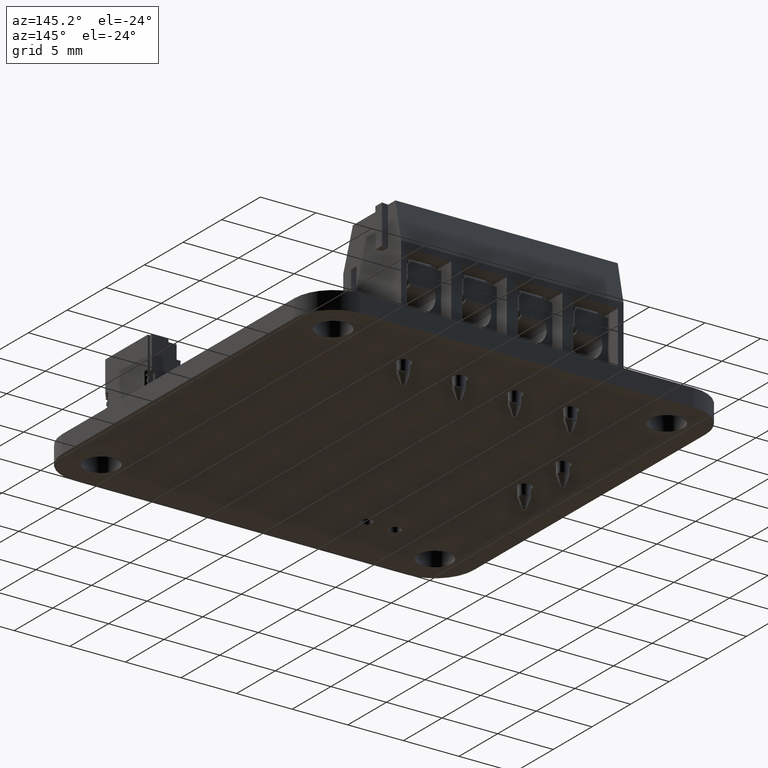
[diagram: clean part render]
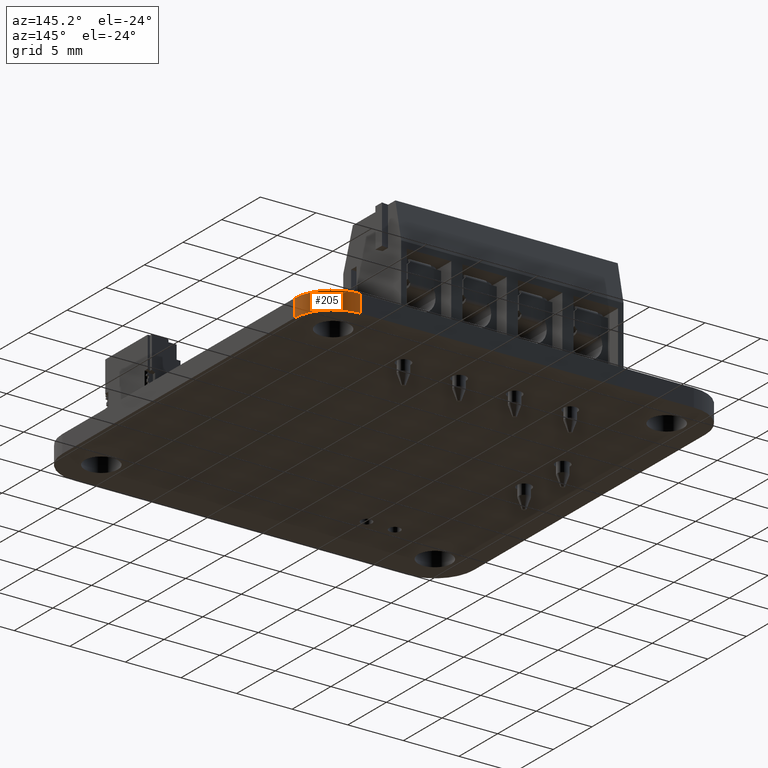
[diagram: same view with one face highlighted and labeled with its STEP entity id]
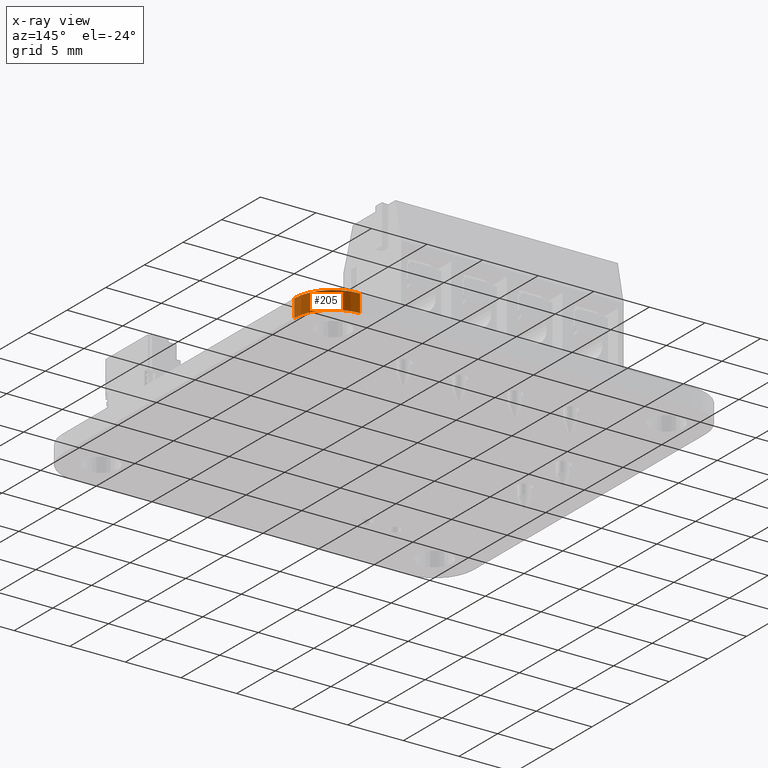
[diagram: x-ray of the same camera — body ghosted, the highlighted face saturated]
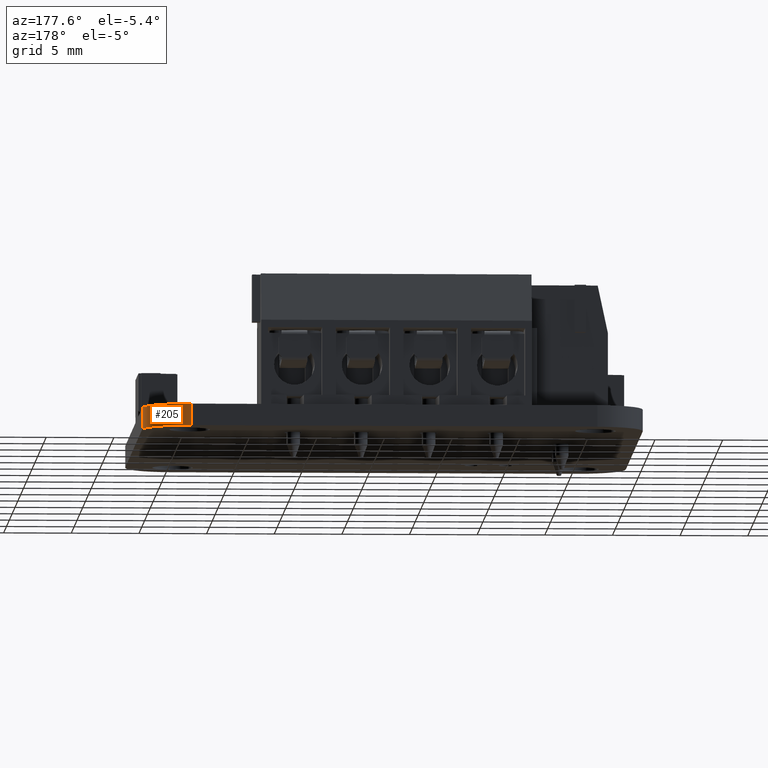
[diagram: same view with one face highlighted and labeled with its STEP entity id]
A machine part, auxiliary view. The second image highlights one B-rep face of the part: STEP entity #205.
The next image is the same camera in x-ray: the body ghosted, the highlighted face saturated — about 0% of this face is hidden behind the body in this view.
A second angle (auxiliary view) of the same face is appended — the face is thin or edge-on in the first view.
In plain terms, the highlighted cylindrical surface (partial cylindrical patch) has radius 3.4996 mm, axis along (0, 0, -1).
Its self-contained STEP definition (entity closure, byte-faithful):
#180 = VERTEX_POINT('',#181);
#181 = CARTESIAN_POINT('',(33.5,37.,1.59540194));
#187 = EDGE_CURVE('',#188,#180,#190,.T.);
#188 = VERTEX_POINT('',#189);
#189 = CARTESIAN_POINT('',(33.5,37.,0.));
#190 = LINE('',#191,#192);
#191 = CARTESIAN_POINT('',(33.5,37.,0.));
#192 = VECTOR('',#193,1.);
#193 = DIRECTION('',(0.,0.,1.));
#205 = ADVANCED_FACE('',(#206),#233,.T.);
#206 = FACE_BOUND('',#207,.T.);
#207 = EDGE_LOOP('',(#208,#209,#218,#226));
#208 = ORIENTED_EDGE('',*,*,#187,.T.);
#209 = ORIENTED_EDGE('',*,*,#210,.T.);
#210 = EDGE_CURVE('',#180,#211,#213,.T.);
#211 = VERTEX_POINT('',#212);
#212 = CARTESIAN_POINT('',(37.,33.5,1.59540194));
#213 = CIRCLE('',#214,3.499568992062);
#214 = AXIS2_PLACEMENT_3D('',#215,#216,#217);
#215 = CARTESIAN_POINT('',(33.500431034483,33.500431034483,1.59540194));
#216 = DIRECTION('',(0.,0.,-1.));
#217 = DIRECTION('',(-1.231678768832E-04,0.999999992415,0.));
#218 = ORIENTED_EDGE('',*,*,#219,.F.);
#219 = EDGE_CURVE('',#220,#211,#222,.T.);
#220 = VERTEX_POINT('',#221);
#221 = CARTESIAN_POINT('',(37.,33.5,0.));
#222 = LINE('',#223,#224);
#223 = CARTESIAN_POINT('',(37.,33.5,0.));
#224 = VECTOR('',#225,1.);
#225 = DIRECTION('',(0.,0.,1.));
#226 = ORIENTED_EDGE('',*,*,#227,.F.);
#227 = EDGE_CURVE('',#188,#220,#228,.T.);
#228 = CIRCLE('',#229,3.499568992062);
#229 = AXIS2_PLACEMENT_3D('',#230,#231,#232);
#230 = CARTESIAN_POINT('',(33.500431034483,33.500431034483,0.));
#231 = DIRECTION('',(0.,0.,-1.));
#232 = DIRECTION('',(-1.231678768832E-04,0.999999992415,0.));
#233 = CYLINDRICAL_SURFACE('',#234,3.499568992062);
#234 = AXIS2_PLACEMENT_3D('',#235,#236,#237);
#235 = CARTESIAN_POINT('',(33.500431034483,33.500431034483,0.));
#236 = DIRECTION('',(0.,0.,-1.));
#237 = DIRECTION('',(-1.231678768832E-04,0.999999992415,0.));